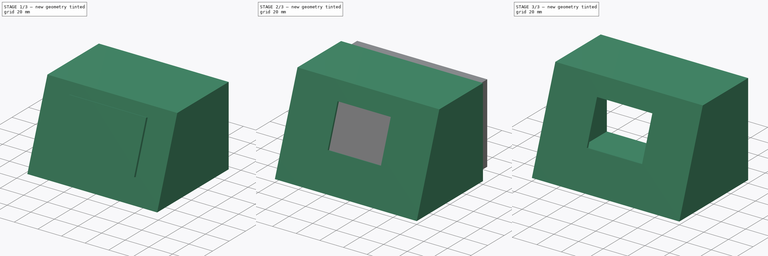
[diagram: build sequence overview — one tinted view per stage of 3, left to right]
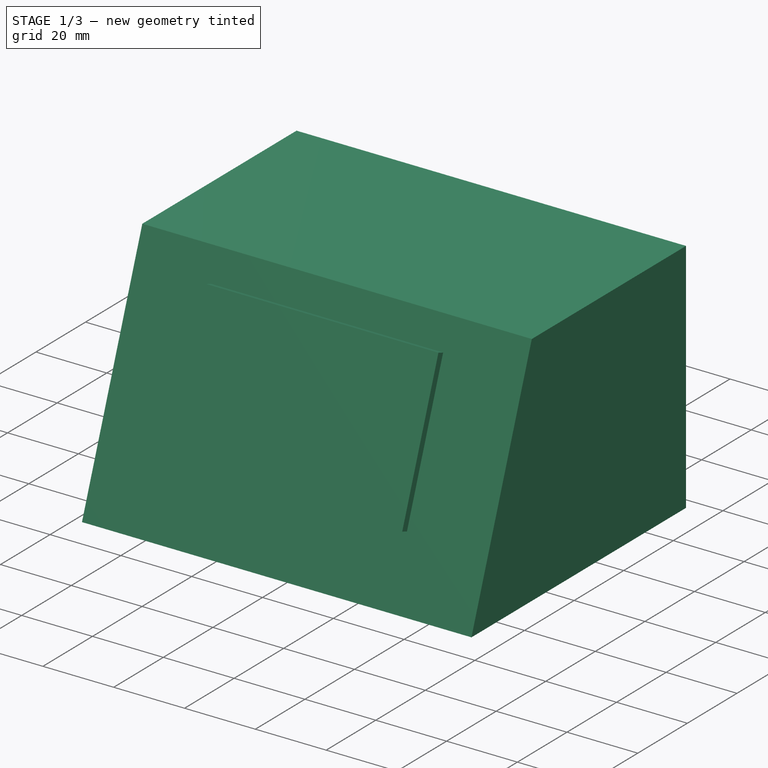
[diagram: stage 1 of 3 — iso view after this stage's code; geometry added in this stage tinted green]
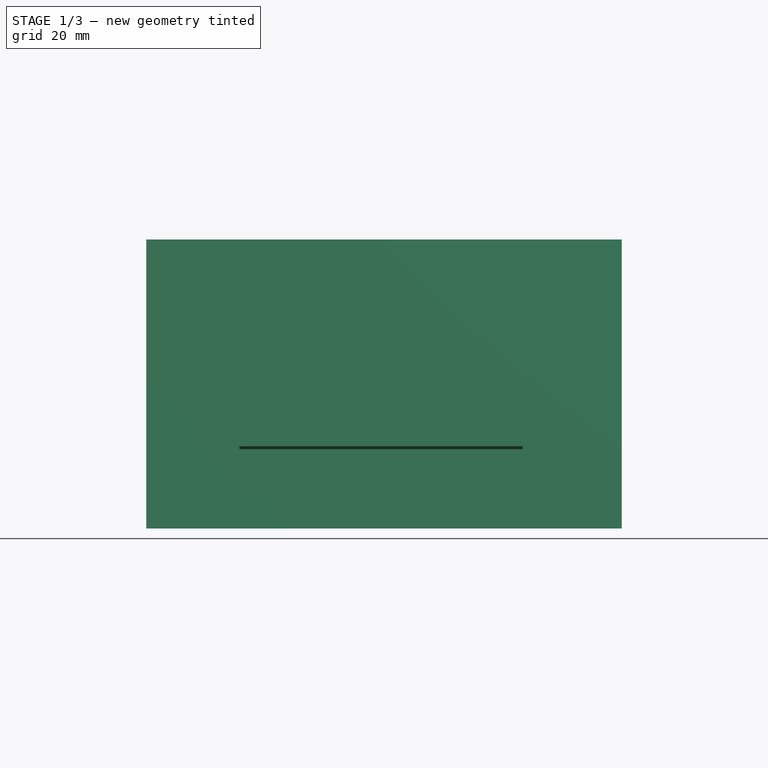
[diagram: stage 1 of 3 — front view after this stage's code; geometry added in this stage tinted green]
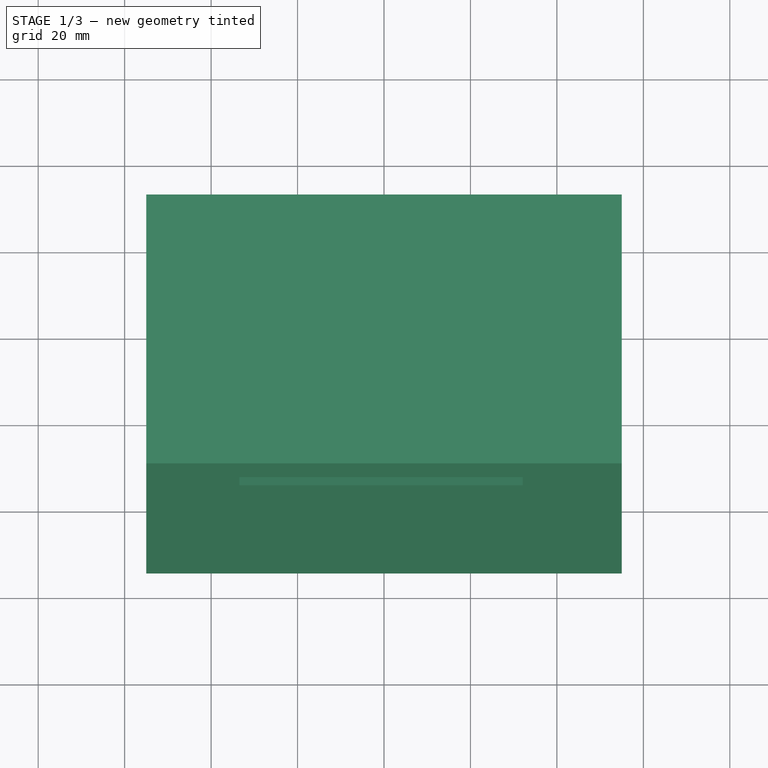
[diagram: stage 1 of 3 — top view after this stage's code; geometry added in this stage tinted green]
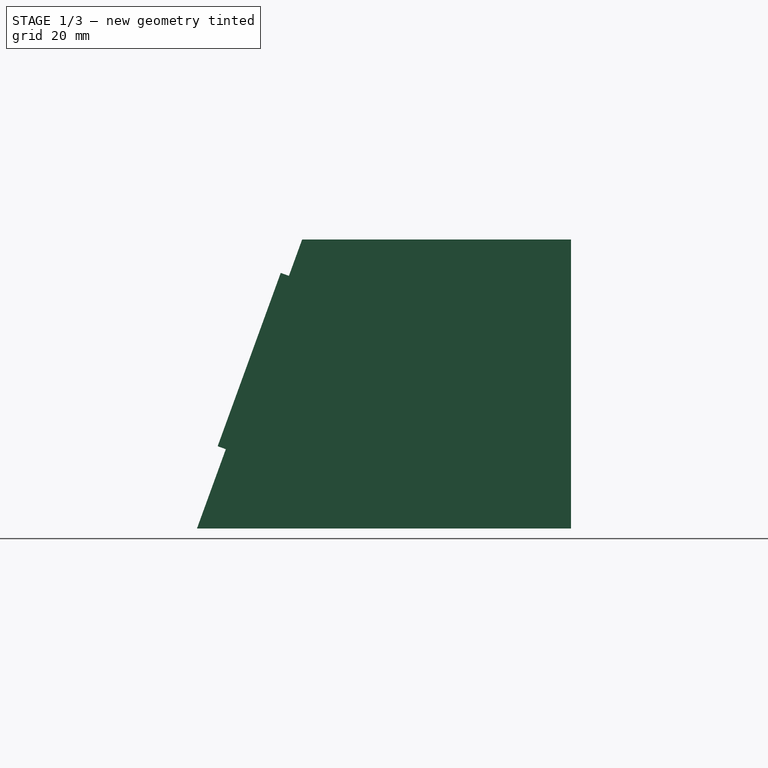
[diagram: stage 1 of 3 — right view after this stage's code; geometry added in this stage tinted green]
FCSTD DOCUMENT  (FreeCAD 0.19R24415 (Git))
Label: sockel
License: All rights reserved
LicenseURL: http://en.wikipedia.org/wiki/All_rights_reserved
objects: Sketcher::SketchObject×4, PartDesign::Body×4, PartDesign::ShapeBinder×3, PartDesign::Plane×3, Part::Extrusion×3, Part::Cut×3, PartDesign::Pad×1
note: 22 computed .brp shape members not serialized (recipe doc carries the construction recipe); baked Part::Feature solids carry a one-line shape summary decoded from their .brp

FEATURE [PartDesign::ShapeBinder] CopyCut
  Placement = pos=(-5.33e-14,3.33e-14,120) rot=(0.57735,0.57735,0.57735;4.18879rad)
  TraceSupport = false
FEATURE [PartDesign::Plane] DatumPlane001
  Length = 169.678
  MapMode = 5
  Placement = pos=(120,-4.66e-14,120) rot=(0,1,0;1.5708rad)
  ResizeMode = 0
  Support = -> [CopyCut]
  Width = 129.678
FEATURE [Sketcher::SketchObject] Sketch002
  FullyConstrained = false
  MapMode = 5
  Placement = pos=(120,-4.66e-14,120) rot=(0,1,0;1.5708rad)
  Support = -> [DatumPlane001]
  sketch-geometry (4):
    g0: LineSegment StartX=48.1974 StartY=92.2919 StartZ=0 EndX=48.1974 EndY=30.0881 EndZ=0
    g1: LineSegment StartX=48.1974 StartY=30.0881 StartZ=0 EndX=115.057 EndY=5.75343 EndZ=0
    g2: LineSegment StartX=115.057 StartY=5.75343 StartZ=0 EndX=115.057 EndY=92.2919 EndZ=0
    g3: LineSegment StartX=115.057 StartY=92.2919 StartZ=0 EndX=48.1974 EndY=92.2919 EndZ=0
  constraints (8):
    c: Vertical(g0)
    c: Coincident(g0,g1)
    c: Coincident(g1,g2)
    c: Vertical(g2)
    c: Coincident(g2,g3)
    c: Coincident(g3,g0)
    c: Horizontal(g3)
    c: Angle(g2,g1) = 1.22173
FEATURE [PartDesign::Body] Body002  label="hohlraum"
  Group = -> [DatumPlane001,CopyCut,Sketch002]
  Origin = -> Origin002
FEATURE [Part::Extrusion] Extrude
  Base = -> Sketch002
  Dir = (1,-7e-16,4e-16)
  DirMode = 2
  FaceMakerClass = Part::FaceMakerBullseye
  LengthFwd = 110
  LengthRev = 0
  Placement = pos=(-115,0,0) rot=(0,0,1;0rad)
  Solid = true
  Symmetric = false
FEATURE [PartDesign::ShapeBinder] CopyCut001
  TraceSupport = false
FEATURE [PartDesign::Plane] DatumPlane002
  Length = 170.471
  MapMode = 5
  Placement = pos=(0,0,0) rot=(1,0,0;1.22173rad)
  ResizeMode = 0
  Support = -> [CopyCut001]
  Width = 137.327
FEATURE [Sketcher::SketchObject] Sketch003
  FullyConstrained = false
  MapMode = 5
  Placement = pos=(0,0,0) rot=(1,0,0;1.22173rad)
  Support = -> [DatumPlane002]
  sketch-geometry (4):
    g0: LineSegment StartX=26.541 StartY=68.8076 StartZ=0 EndX=92.0995 EndY=68.8076 EndZ=0
    g1: LineSegment StartX=92.0995 StartY=68.8076 StartZ=0 EndX=92.0995 EndY=26.1384 EndZ=0
    g2: LineSegment StartX=92.0995 StartY=26.1384 StartZ=0 EndX=26.541 EndY=26.1384 EndZ=0
    g3: LineSegment StartX=26.541 StartY=26.1384 StartZ=0 EndX=26.541 EndY=68.8076 EndZ=0
  constraints (8):
    c: Coincident(g0,g1)
    c: Coincident(g1,g2)
    c: Coincident(g2,g3)
    c: Coincident(g3,g0)
    c: Horizontal(g0)
    c: Horizontal(g2)
    c: Vertical(g1)
    c: Vertical(g3)
FEATURE [PartDesign::Body] Body003
  Group = -> [DatumPlane002,CopyCut001,Sketch003]
  Origin = -> Origin003
FEATURE [Part::Extrusion] Extrude002
  Base = -> Sketch003
  Dir = (-6e-16,-0.939693,0.34202)
  DirMode = 2
  FaceMakerClass = Part::FaceMakerBullseye
  LengthFwd = 10
  LengthRev = 0
  Placement = pos=(0,11,-4) rot=(0,0,1;0rad)
  Solid = true
  Symmetric = false
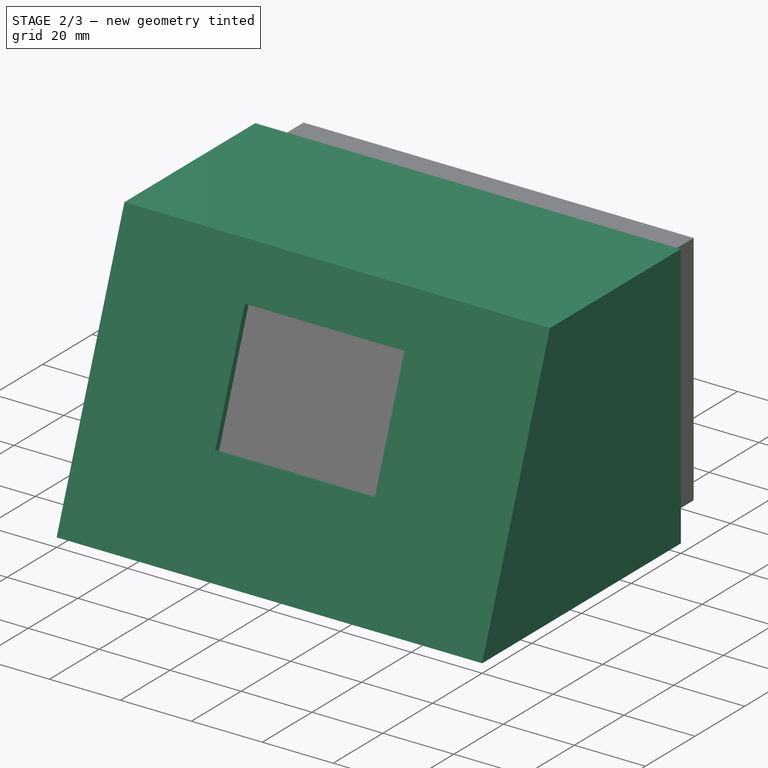
[diagram: stage 2 of 3 — iso view after this stage's code; geometry added in this stage tinted green]
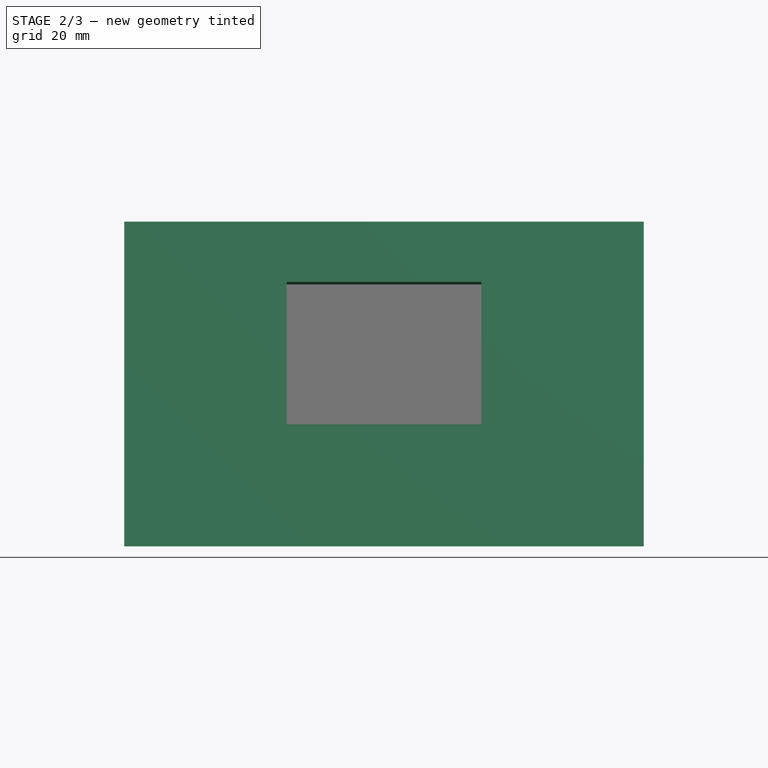
[diagram: stage 2 of 3 — front view after this stage's code; geometry added in this stage tinted green]
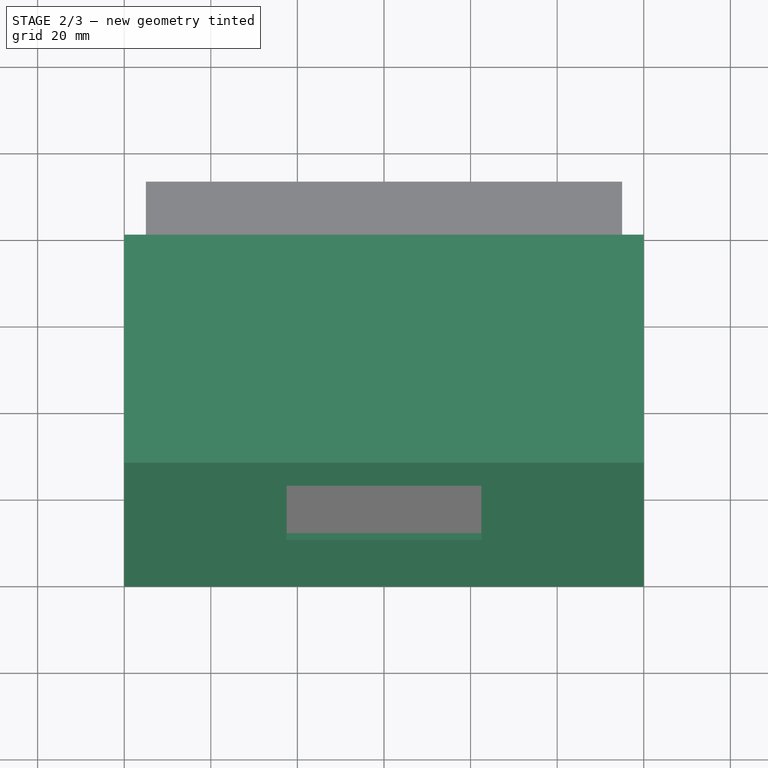
[diagram: stage 2 of 3 — top view after this stage's code; geometry added in this stage tinted green]
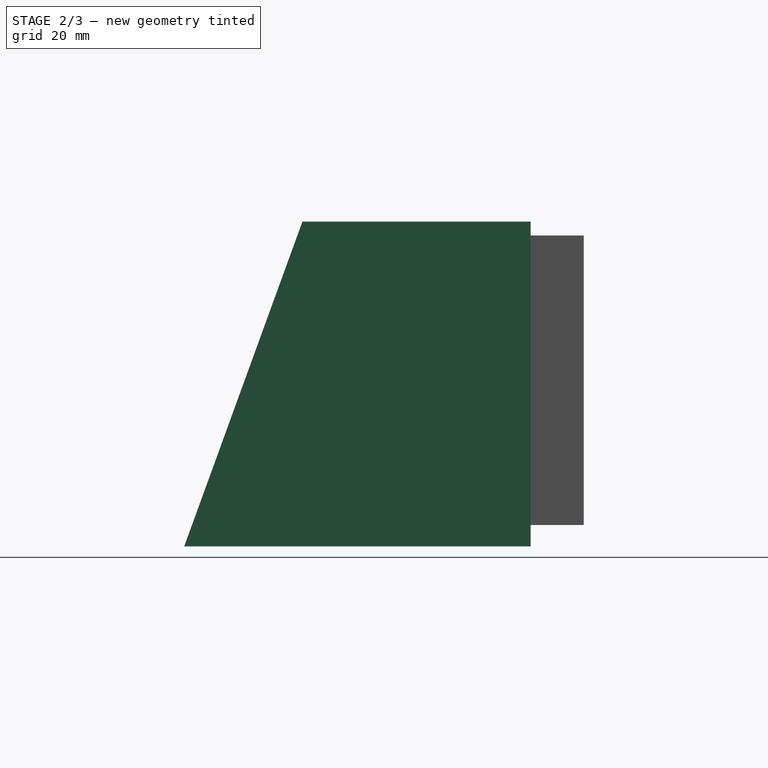
[diagram: stage 2 of 3 — right view after this stage's code; geometry added in this stage tinted green]
FEATURE [Sketcher::SketchObject] Sketch
  FullyConstrained = true
  MapMode = 5
  Placement = pos=(0,0,0) rot=(0.57735,0.57735,0.57735;2.0944rad)
  Support = -> [YZ_Plane]
  sketch-geometry (4):
    g0: LineSegment StartX=0 StartY=0 StartZ=0 EndX=27.2978 EndY=75 EndZ=0
    g1: LineSegment StartX=27.2978 StartY=75 StartZ=0 EndX=80 EndY=75 EndZ=0
    g2: LineSegment StartX=80 StartY=75 StartZ=0 EndX=80 EndY=0 EndZ=0
    g3: LineSegment StartX=80 StartY=0 StartZ=0 EndX=0 EndY=0 EndZ=0
  constraints (11):
    c: Coincident(g-1,g0)
    c: Coincident(g0,g1)
    c: Horizontal(g1)
    c: Coincident(g1,g2)
    c: PointOnObject(g2,g-1)
    c: Vertical(g2)
    c: Coincident(g2,g3)
    c: Coincident(g3,g0)
    c: Angle(g3,g0) = 1.22173
    c: DistanceX(g3,g3) = 80
    c: DistanceY(g2,g2) = 75
FEATURE [PartDesign::Pad] Pad
  Direction = (1,1,1)
  Length = 120
  Length2 = 100
  Placement = pos=(0,0,0) rot=(0.57735,0.57735,0.57735;2.0944rad)
  Profile = -> Sketch
  Refine = true
  Type = 0
FEATURE [PartDesign::Body] Body
  Group = -> [Sketch,Pad]
  Origin = -> Origin
  Tip = -> Pad
FEATURE [PartDesign::ShapeBinder] CopyPad
  Placement = pos=(0,0,0) rot=(0.57735,0.57735,0.57735;2.0944rad)
  TraceSupport = false
FEATURE [PartDesign::Plane] DatumPlane
  Length = 137.327
  MapMode = 5
  Placement = pos=(0,0,0) rot=(0.497543,0.497543,-0.710565;1.90603rad)
  ResizeMode = 0
  Support = -> [CopyPad]
  Width = 170.471
FEATURE [Sketcher::SketchObject] Sketch001
  FullyConstrained = true
  MapMode = 5
  Placement = pos=(0,0,0) rot=(0.497543,0.497543,-0.710565;1.90603rad)
  Support = -> [DatumPlane]
  sketch-geometry (4):
    g0: LineSegment StartX=-65 StartY=82.5 StartZ=0 EndX=-30 EndY=82.5 EndZ=0
    g1: LineSegment StartX=-30 StartY=82.5 StartZ=0 EndX=-30 EndY=37.5 EndZ=0
    g2: LineSegment StartX=-30 StartY=37.5 StartZ=0 EndX=-65 EndY=37.5 EndZ=0
    g3: LineSegment StartX=-65 StartY=37.5 StartZ=0 EndX=-65 EndY=82.5 EndZ=0
  constraints (12):
    c: Coincident(g0,g1)
    c: Coincident(g1,g2)
    c: Coincident(g2,g3)
    c: Coincident(g3,g0)
    c: Horizontal(g0)
    c: Horizontal(g2)
    c: Vertical(g1)
    c: Vertical(g3)
    c: DistanceX(g0,g0) = 35
    c: DistanceY(g1,g1) = 45
    c: DistanceY(g-1,g1) = 37.5
    c: DistanceX(g1,g-1) = 30
FEATURE [PartDesign::Body] Body001  label="Display"
  Group = -> [DatumPlane,CopyPad,Sketch001]
  Origin = -> Origin001
FEATURE [Part::Extrusion] Extrude001
  Base = -> Sketch001
  Dir = (-8e-16,-0.939693,0.34202)
  DirMode = 2
  FaceMakerClass = Part::FaceMakerBullseye
  LengthFwd = 10
  LengthRev = 60
  Solid = true
  Symmetric = false
FEATURE [Part::Cut] Cut
  Base = -> Body
  Refine = true
  Tool = -> Extrude001
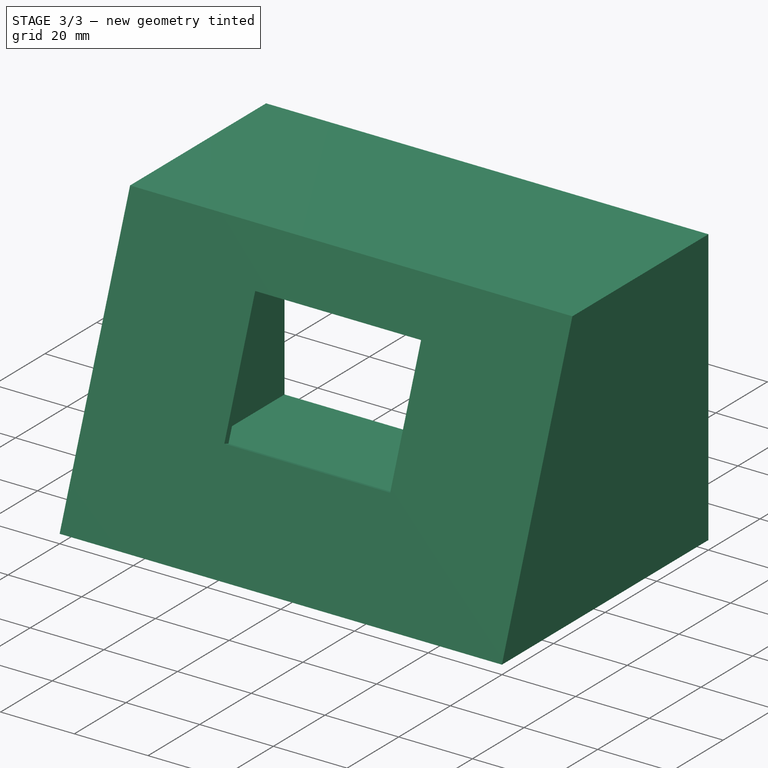
[diagram: stage 3 of 3 — iso view after this stage's code; geometry added in this stage tinted green]
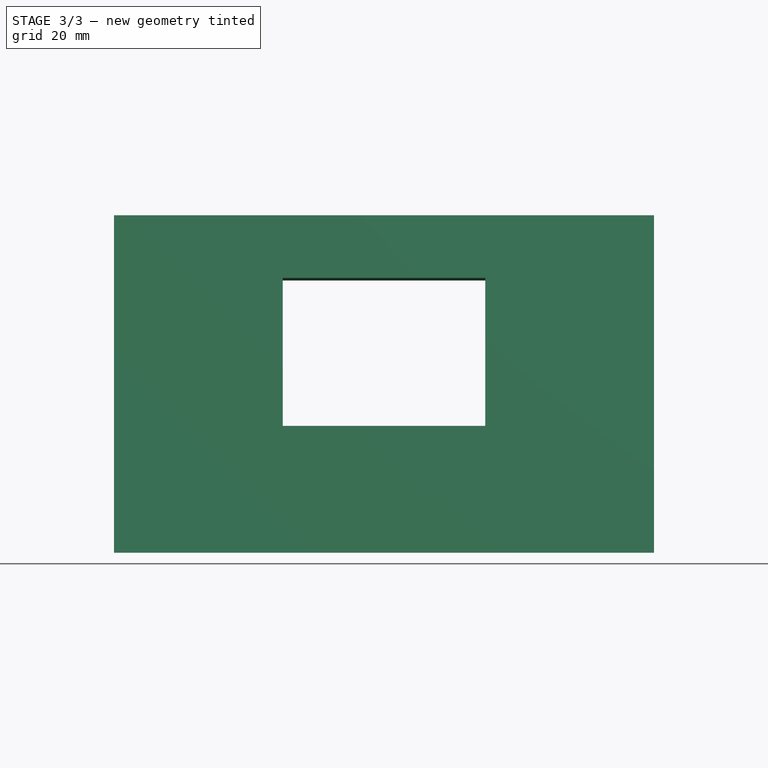
[diagram: stage 3 of 3 — front view after this stage's code; geometry added in this stage tinted green]
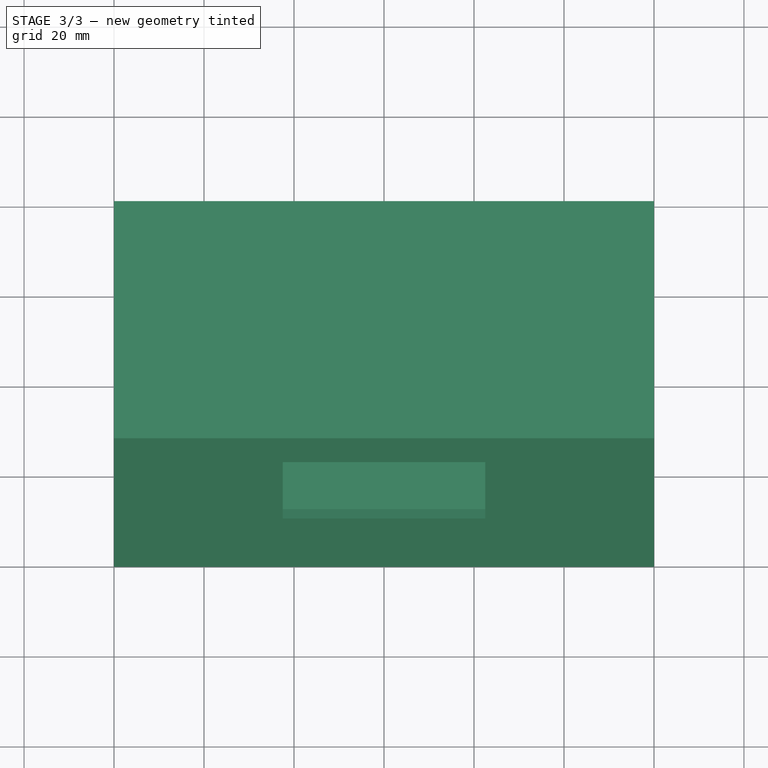
[diagram: stage 3 of 3 — top view after this stage's code; geometry added in this stage tinted green]
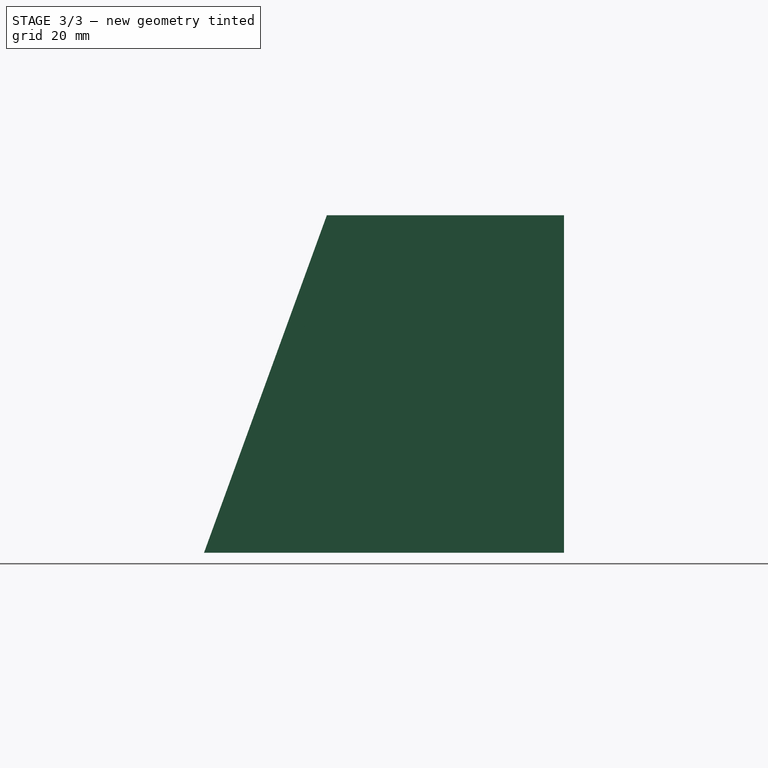
[diagram: stage 3 of 3 — right view after this stage's code; geometry added in this stage tinted green]
FEATURE [Part::Cut] Cut001
  Base = -> Cut
  Refine = true
  Tool = -> Extrude
FEATURE [Part::Cut] Cut002
  Base = -> Cut001
  Refine = true
  Tool = -> Extrude002
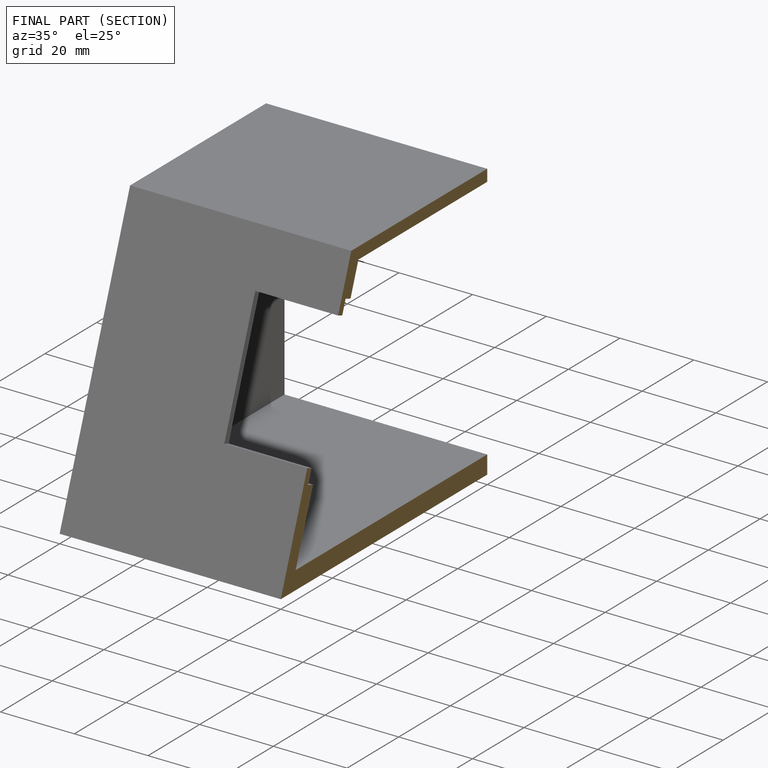
[diagram: finished part — half-section view (interior)]
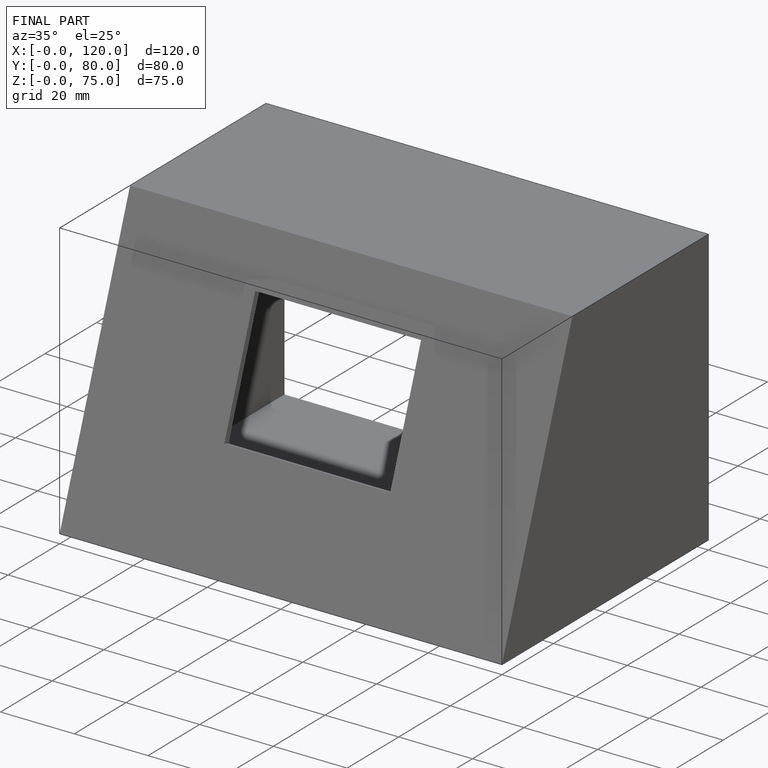
[diagram: finished part — iso view with bounding-box wireframe]
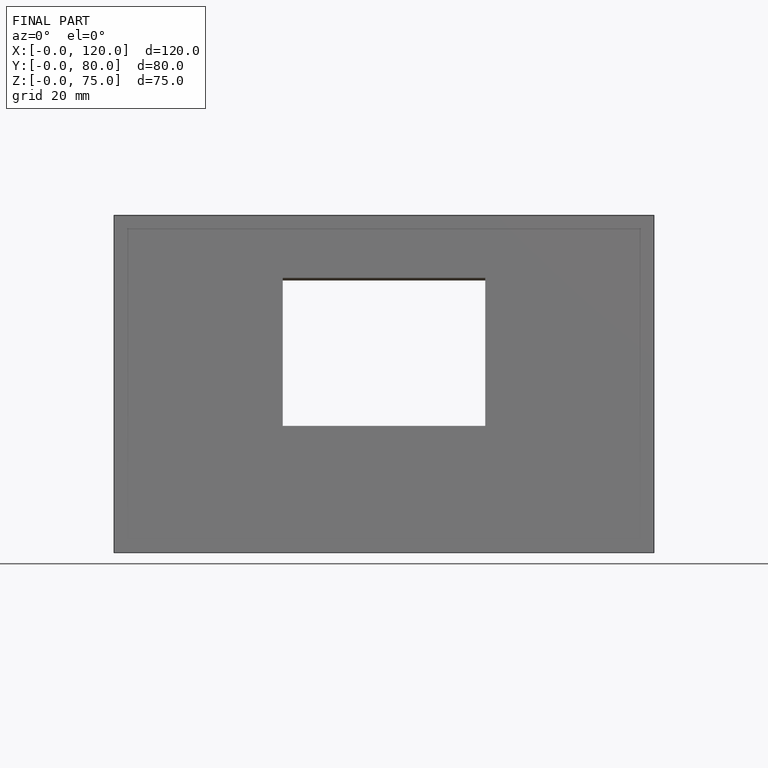
[diagram: finished part — front view with bounding-box wireframe]
